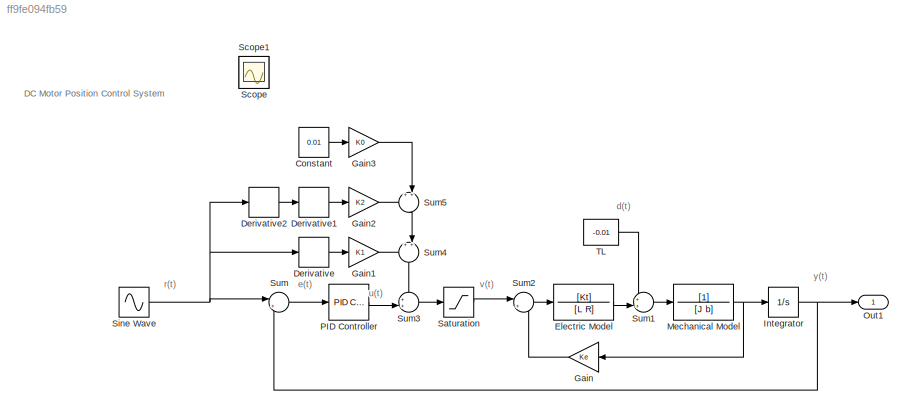
MODEL slx_ff9fe094fb59
KIND model
CONFIG AbsTol = auto
CONFIG EnableMultiTasking = off
CONFIG FixedStep = 0.0001
CONFIG MaxStep = auto
CONFIG MinStep = auto
CONFIG RelTol = 1e-3
CONFIG SampleTimeConstraint = Unconstrained
CONFIG SolverName = ode4
CONFIG StartTime = 0.0
CONFIG StopTime = 0.4
BLOCK [Constant] Constant
  Value = 0.01
BLOCK [Derivative] Derivative
BLOCK [Derivative] Derivative1
BLOCK [Derivative] Derivative2
BLOCK [TransferFcn] Electric Model
  Denominator = [L R]
  Numerator = [Kt]
BLOCK [Gain] Gain
  Gain = Ke
  NameLocation = top
BLOCK [Gain] Gain1
  Gain = K1
BLOCK [Gain] Gain2
  Gain = K2
BLOCK [Gain] Gain3
  Gain = K0
BLOCK [Integrator] Integrator
  Ports = [1, 1]
BLOCK [TransferFcn] Mechanical Model
  Denominator = [J b]
BLOCK [Outport] Out1
BLOCK [Reference] PID Controller  REF=slpidlib/PID Controller
  Ports = [1, 1]
  SourceBlock = slpidlib/PID Controller
  SourceProductBaseCode = SL
  SourceType = PID 1dof
BLOCK [Saturate] Saturation
  LowerLimit = -24
  UpperLimit = 24
BLOCK [Scope] Scope
  Floating = off
  IOType = viewer
  NumInputPorts = 1
  Ports = []
  ScopeSpecificationString = Simulink.scopes.TimeScopeBlockCfg('CurrentConfiguration', extmgr.ConfigurationSet(extmgr.Configuration('Core','General UI',true,'ShowMainToolbar',false),extmgr.Configuration('Core','Source UI',true),extmgr.Configuration('Sources','WiredSimulink',true),extmgr.Configuration('Visuals','Time Domain',true,'SerializedDisplays',{struct('MinYLimReal','-0.25008','MaxYLimReal','2.25001','YLabelReal','','Min...<+1396ch>
BLOCK [Scope] Scope1
  Floating = off
  IOType = viewer
  NumInputPorts = 1
  Ports = []
  ScopeSpecificationString = Simulink.scopes.TimeScopeBlockCfg('CurrentConfiguration', extmgr.ConfigurationSet(extmgr.Configuration('Core','General UI',true),extmgr.Configuration('Core','Source UI',true),extmgr.Configuration('Sources','WiredSimulink',true,'DataLoggingVariableName','ScopeData1'),extmgr.Configuration('Visuals','Time Domain',true,'SerializedDisplays',{struct('MinYLimReal','-0.00599','MaxYLimReal','0.00596','YLab...<+1390ch>
BLOCK [Sin] Sine Wave
  Bias = 1
  Frequency = (2*3.141592)*5
  Phase = -3.141592/2
  Ports = [0, 1]
  SampleTime = 0
BLOCK [Sum] Sum
  Inputs = |+-
  Ports = [2, 1]
BLOCK [Sum] Sum1
  Inputs = ++|
  Ports = [2, 1]
BLOCK [Sum] Sum2
  Inputs = |+-
  Ports = [2, 1]
BLOCK [Sum] Sum3
  Inputs = ++|
  Ports = [2, 1]
BLOCK [Sum] Sum4
  Inputs = ++|
  NameLocation = right
  Ports = [2, 1]
BLOCK [Sum] Sum5
  Inputs = ++|
  NameLocation = right
  Ports = [2, 1]
BLOCK [Constant] TL
  Value = -0.01
ANNOTATION (root): DC Motor Position Control System
ANNOTATION (root): d(t)
ANNOTATION (root): e(t)
ANNOTATION (root): r(t)
ANNOTATION (root): u(t)
ANNOTATION (root): v(t)
ANNOTATION (root): y(t)
LINE Constant:1 -> Gain3:1
LINE Derivative1:1 -> Gain2:1
LINE Derivative2:1 -> Derivative1:1
LINE Derivative:1 -> Gain1:1
LINE Electric Model:1 -> Sum1:2
LINE Gain1:1 -> Sum4:1
LINE Gain2:1 -> Sum5:1
LINE Gain3:1 -> Sum5:2
LINE Gain:1 -> Sum2:2
NET Integrator:1 -> Out1:1, Sum:2
NET Mechanical Model:1 -> Gain:1, Integrator:1
LINE PID Controller:1 -> Sum3:2
LINE Saturation:1 -> Sum2:1
NET Sine Wave:1 -> Derivative2:1, Derivative:1, Sum:1
LINE Sum1:1 -> Mechanical Model:1
LINE Sum2:1 -> Electric Model:1
LINE Sum3:1 -> Saturation:1
LINE Sum4:1 -> Sum3:1
LINE Sum5:1 -> Sum4:2
LINE Sum:1 -> PID Controller:1
LINE TL:1 -> Sum1:1
note: NET lines group one-source signal fan-out (src -> all destinations, sorted); 1:1 wires keep LINE
